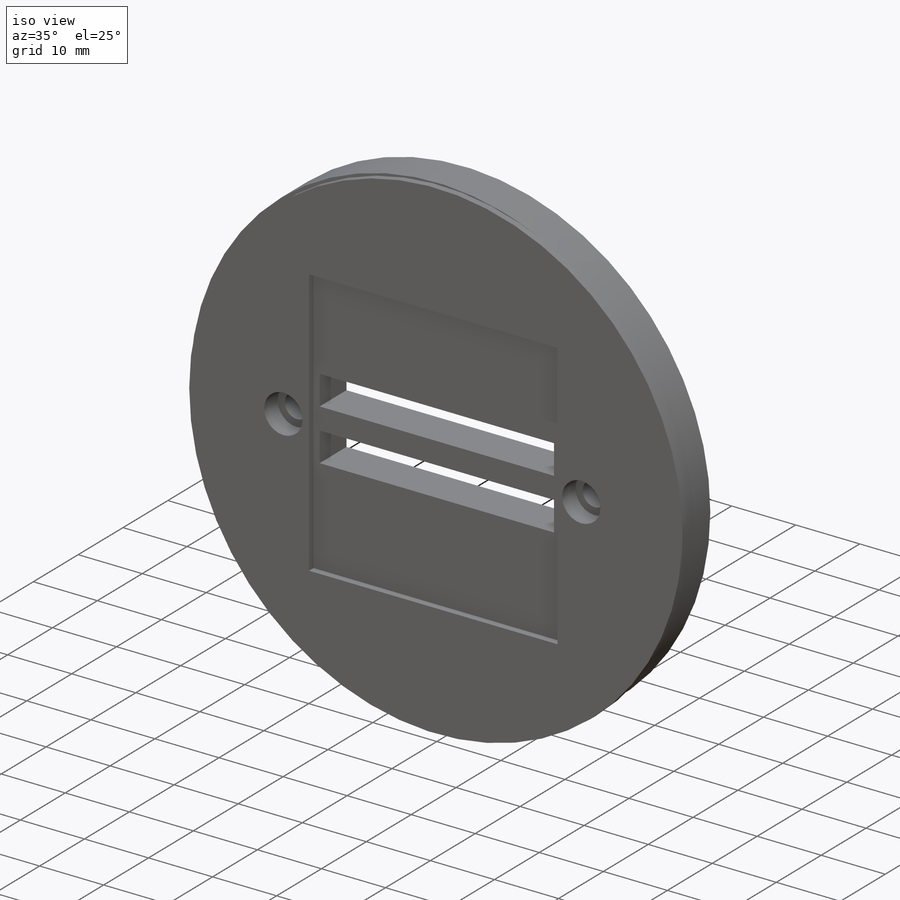
[diagram: iso view]
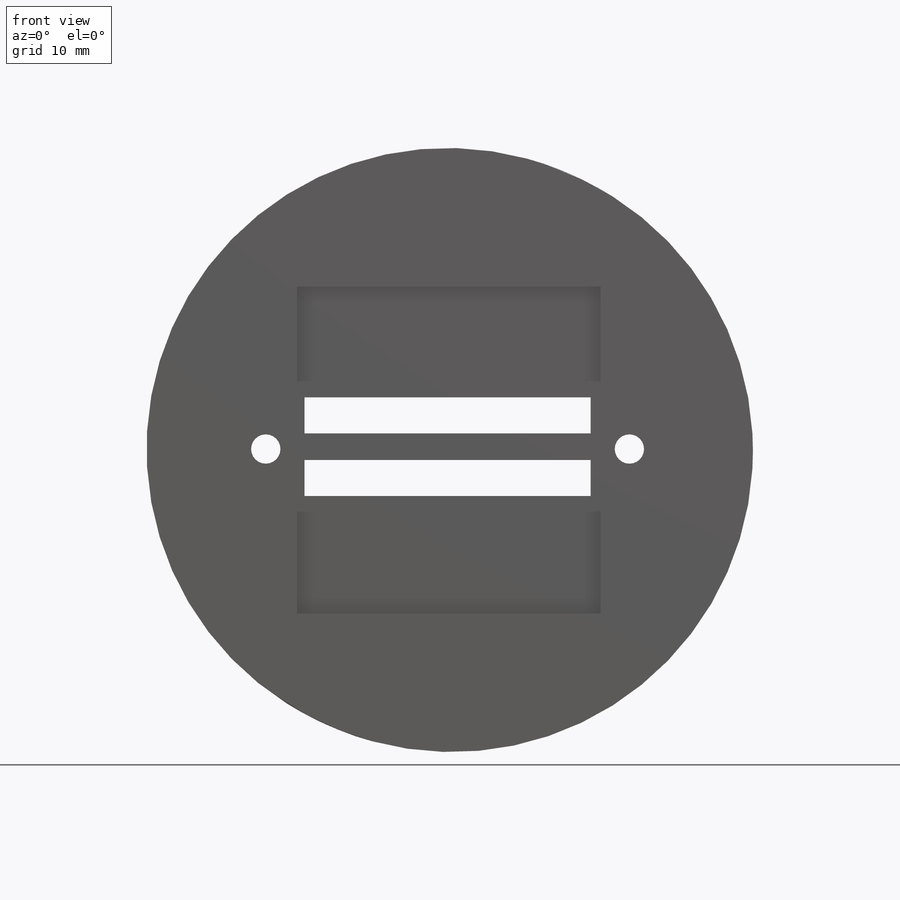
[diagram: front view]
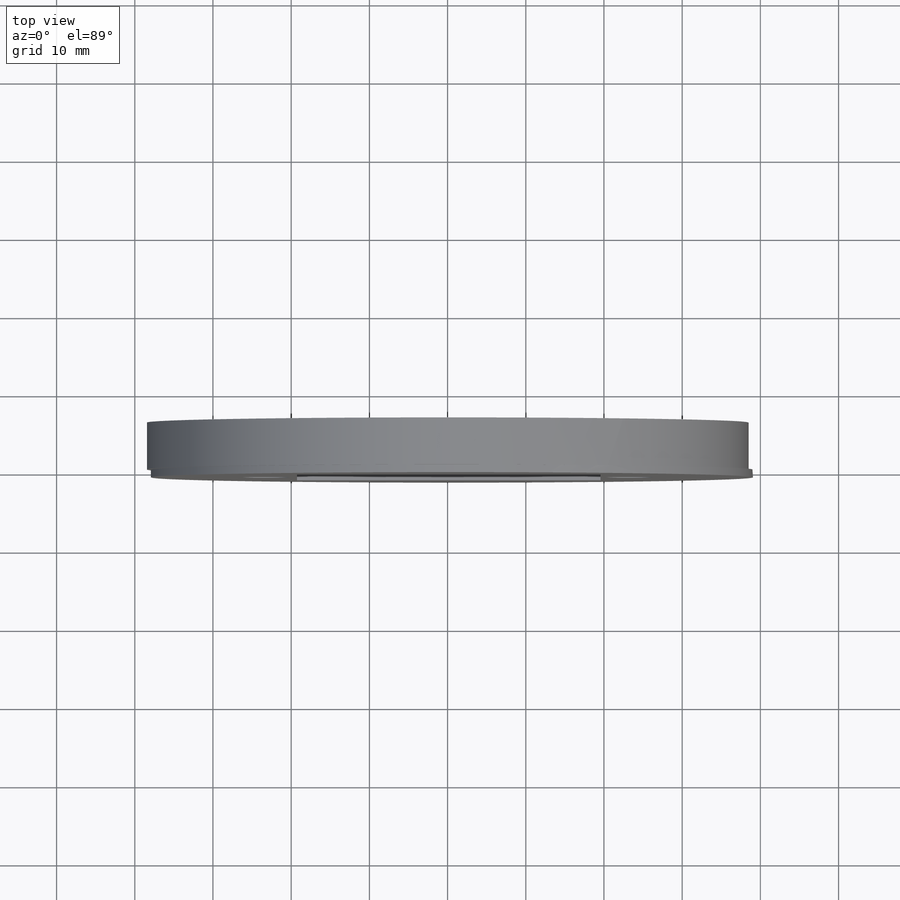
[diagram: top view]
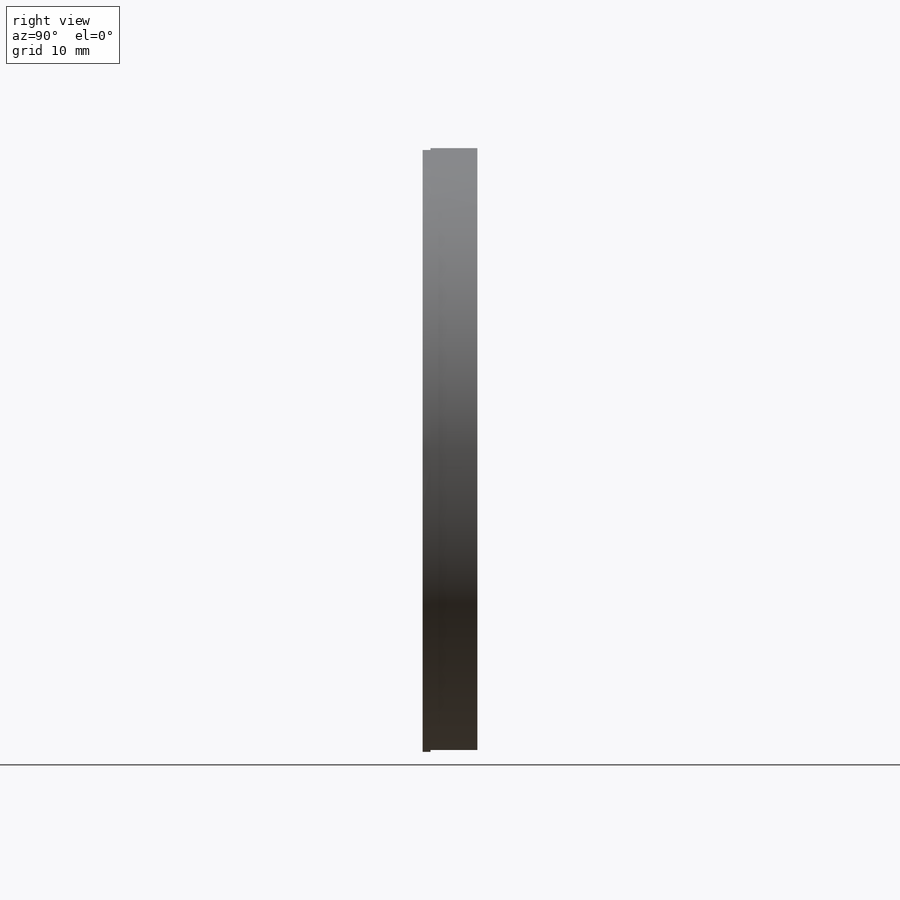
[diagram: right view]
SOLIDWORKS PART (.sldprt)
format: sldprt  version: not decoded by parser v0  size: 246,784 bytes
history: native  units: mm
features: sketch x3, extrude x2, material x1, cut_extrude x1 (+13 scaffold rows collapsed)
feature tree (20):
  scaffold x13  (default folders/planes/origin — collapsed)
  material  "ABS"
  sketch  "Sketch1"  dims[c1.D1=77.0mm c1.D2=69.4mm c1.D3=3.45mm c1.D6=50.0mm c1.D7=~7.762614mm c1.D4=11.0mm c1.D5=77.0mm c2.D1=~4.343316mm c2.D9=3.45mm c2.D10=3.75mm c2.D3=3.45mm c2.D8=3.75mm c2.D4=25.84mm c2.D5=32.65mm c2.D6=42.8mm c2.D7=50.5mm c3.D8=22.0mm c3.D7=29.3mm c3.D1=5.25mm c3.D3=18.0mm c3.D4=4.0mm c3.D6=4.0mm c4.D7=36.0mm c4.D8=2.0mm c4.D9=46.5mm c4.D1=2.0mm c4.D3=36.0mm c4.D4=4.0mm c4.D6=4.0mm c5.D7=2.0mm c5.D8=36.0mm c5.D3=18.3mm c5.D4=23.25mm c5.D6=18.3mm c6.D7=23.25mm c6.D8=2.0mm c6.D11=6.0mm c6.D12=2.0mm c6.D13=6.0mm c7.D8=6.0mm c7.D9=4.6mm c7.D11=4.0mm]
  extrude  "Main Flange Coupling"  Depth=6mm
  sketch  "Sketch2"  dims[D3=77.0mm D4=3.3mm D5=3.3mm D1=38.8mm D2=41.8mm D6=21.0mm D7=19.0mm]
  extrude  "Boss-Extrude1"  Depth=1mm
  sketch  "Sketch3"  dims[c1.D1=6.0mm c1.D2=6.0mm c2.D1=23.0mm c2.D3=2.5mm]
  cut_extrude  "Cut-Extrude1"  Depth=3mm
decode coverage: 6 of 6 modeling features carry decoded parameters
note: ~ marks probable driven/reference dimensions
note: suppression state not decoded; provenance and decode notes live in map.json
